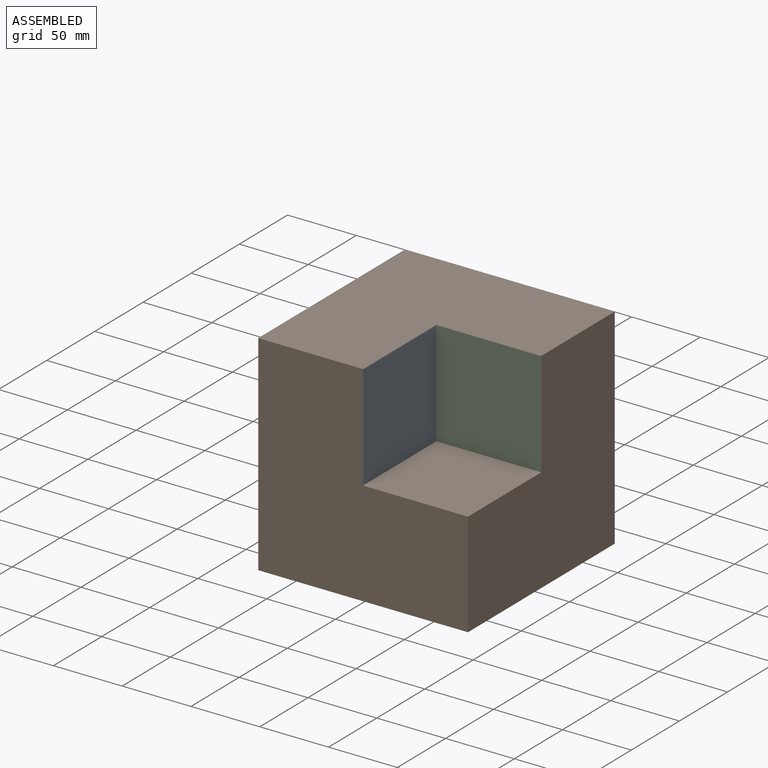
[diagram: assembled view]
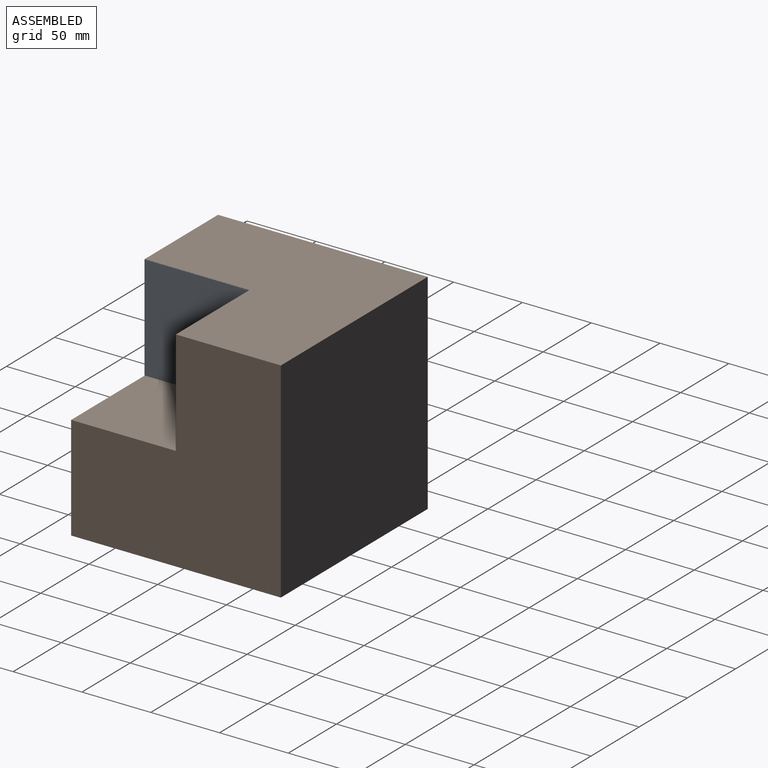
[diagram: assembled view, second angle]
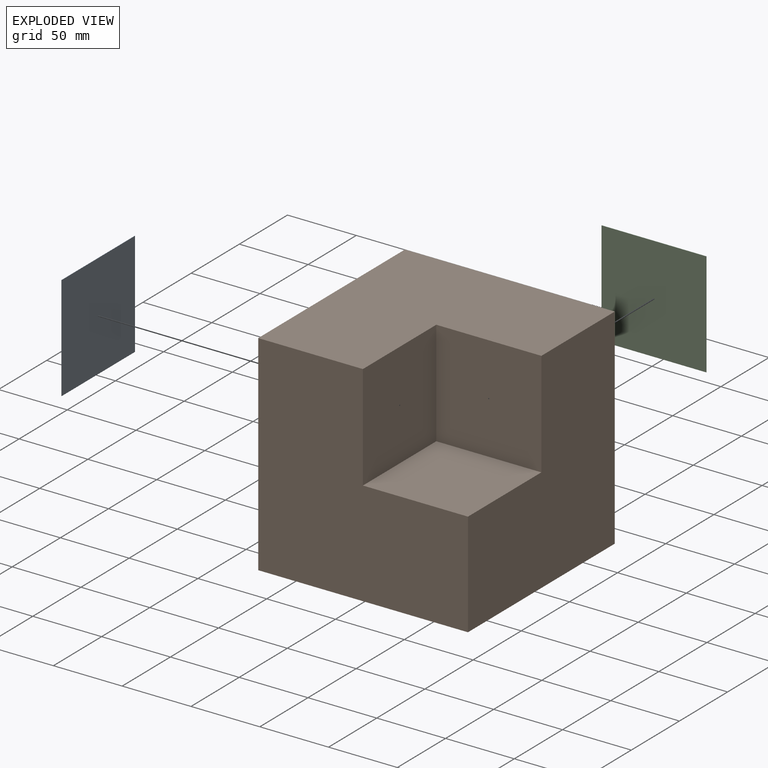
[diagram: exploded view]
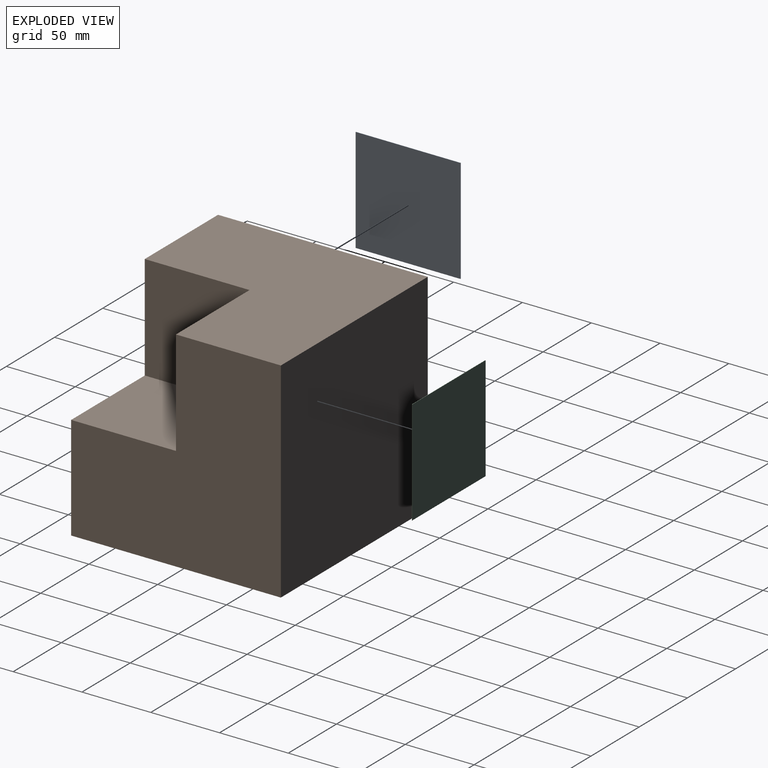
[diagram: exploded view, second angle]
ASSEMBLY  parts=3 mates=2
PART A: 6 faces, bbox 76.2x0.3x76.2 mm
  f0: plane 76.17x0.25mm, normal (-1,0,0), area 19.3mm2, adj f1,f3,f4,f5
  f1: plane 76.17x0.25mm, normal (0,0,-1), area 19.3mm2, adj f0,f2,f4,f5
  f2: plane 76.17x0.25mm, normal (1,0,0), area 19.3mm2, adj f1,f3,f4,f5
  f3: plane 76.17x0.25mm, normal (0,0,1), area 19.3mm2, adj f0,f2,f4,f5
  f4: plane 76.17x76.17mm, normal (0,-1,0), area 5802.5mm2, adj f0,f1,f2,f3
  f5: plane 76.17x76.17mm, normal (0,1,0), area 5802.5mm2, adj f0,f1,f2,f3
PART B: 9 faces, bbox 152.5x152.4x152.5 mm
  f0: plane 152.48x152.4mm, normal (1,0,0), area 17407.2mm2, adj f1,f3,f4,f5,f7,f8
  f1: plane 152.48x152.48mm, normal (0,-1,0), area 17405.6mm2, adj f0,f2,f3,f4,f6,f7
  f2: plane 152.48x152.4mm, normal (-1,0,0), area 23237.9mm2, adj f1,f3,f4,f5
  f3: plane 152.48x152.4mm, normal (0,0,-1), area 23237.9mm2, adj f0,f1,f2,f5
  f4: plane 152.48x152.4mm, normal (0,0,1), area 17417.8mm2, adj f0,f1,f2,f5,f6,f8
  f5: plane 152.48x152.48mm, normal (0,1,0), area 23250.1mm2, adj f0,f2,f3,f4
  f6: plane 76.52x76.2mm, normal (1,0,0), area 5830.8mm2, adj f1,f4,f7,f8
  f7: plane 76.38x76.2mm, normal (0,0,1), area 5820.1mm2, adj f0,f1,f6,f8
  f8: plane 76.52x76.38mm, normal (0,-1,0), area 5844.5mm2, adj f0,f4,f6,f7
PART C: same geometry as A
PLACE A rot(axis=(-0.58,-0.58,-0.58),120deg) t=(-46.06,-76.8,0.07)mm
PLACE B t=(-46.31,-0.61,-0.1)mm
PLACE C t=(-46.21,-0.61,0.07)mm
MATE parallel A.f4 <-> B.f6  axis (-1,0,0) through (-46.31,-38.71,38.16)mm
MATE fastened C.f5 <-> B.f8  axis (0,1,0) through (-8.12,-0.61,38.16)mm
